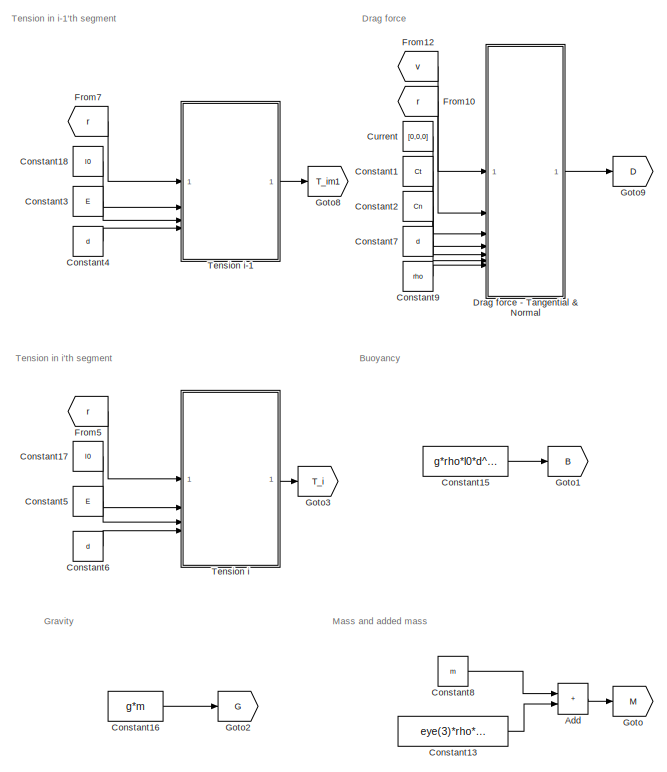
[diagram: root canvas - part 1/2, left side, full height]
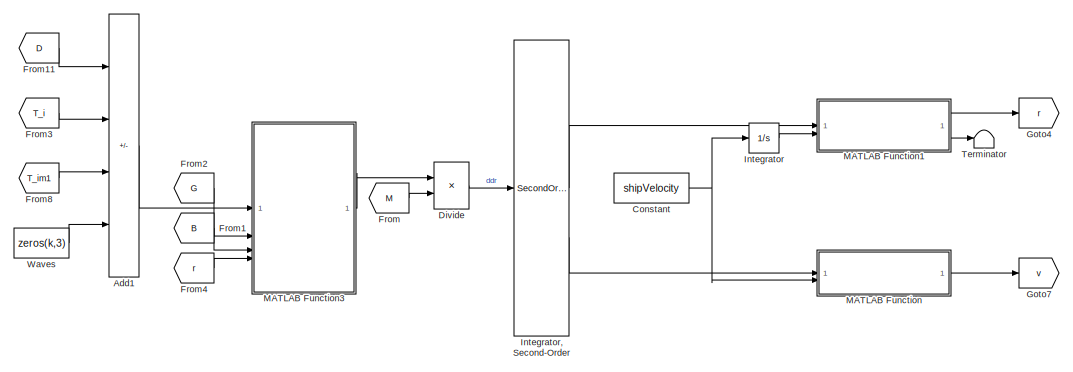
[diagram: root canvas - part 2/2, middle right region]
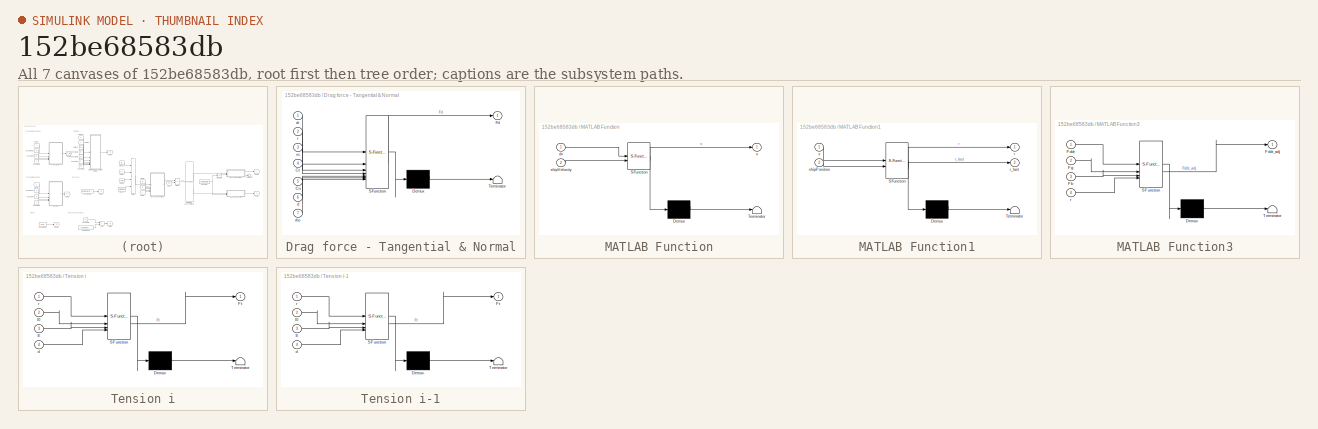
[diagram: thumbnail index - all 7 canvases of the model, root first then tree order]
MODEL slx_152be68583db
KIND model
CONFIG AbsTol = auto
CONFIG EnableMultiTasking = off
CONFIG FixedStep = 0.0001
CONFIG MaxStep = auto
CONFIG MinStep = 0.0001
CONFIG RelTol = 0.0001
CONFIG SampleTimeConstraint = Unconstrained
CONFIG SolverName = VariableStepAuto
CONFIG StartTime = 0.0
CONFIG StopTime = 300
BLOCK [Sum] Add
  IconShape = rectangular
BLOCK [Sum] Add1
  IconShape = rectangular
  Inputs = -+++
BLOCK [Constant] Constant
  Value = shipVelocity
  VectorParams1D = off
BLOCK [Constant] Constant1
  Value = Ct
BLOCK [Constant] Constant13
  Value = eye(3)*rho*pi*d^2/4*l0
BLOCK [Constant] Constant15
  Value = g*rho*l0*d^2/4
  VectorParams1D = off
BLOCK [Constant] Constant16
  Value = g*m
  VectorParams1D = off
BLOCK [Constant] Constant17
  Value = l0
BLOCK [Constant] Constant18
  Value = l0
BLOCK [Constant] Constant2
  Value = Cn
BLOCK [Constant] Constant3
  Value = E
BLOCK [Constant] Constant4
  Value = d
BLOCK [Constant] Constant5
  Value = E
BLOCK [Constant] Constant6
  Value = d
BLOCK [Constant] Constant7
  Value = d
BLOCK [Constant] Constant8
  Value = m
BLOCK [Constant] Constant9
  Value = rho
BLOCK [Constant] Current
  Value = [0,0,0]
  VectorParams1D = off
BLOCK [Product] Divide
  Inputs = */
  Multiplication = Matrix(*)
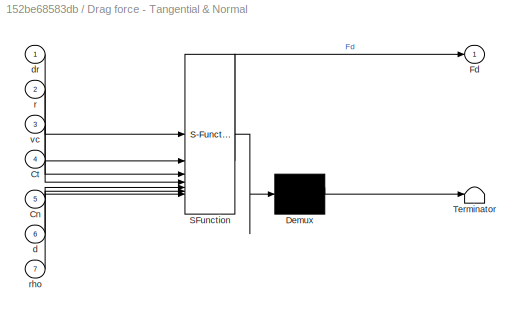
BLOCK [SubSystem] Drag force - Tangential & Normal
  ErrorFcn = Stateflow.Translate.translate
  PermitHierarchicalResolution = ExplicitOnly
  SFBlockType = MATLAB Function
  TreatAsAtomicUnit = on
BLOCK [Demux] Drag force - Tangential & Normal/ Demux 
  Outputs = 1
BLOCK [S-Function] Drag force - Tangential & Normal/ SFunction 
  EnableBusSupport = on
  FunctionName = sf_sfun
  PortCounts = [7 2]
  SFcnIsStateOwnerBlock = off
  SFunctionDeploymentMode = off
  Tag = Stateflow S-Function 26
BLOCK [Terminator] Drag force - Tangential & Normal/ Terminator 
BLOCK [Inport] Drag force - Tangential & Normal/Cn
  Port = 5
BLOCK [Inport] Drag force - Tangential & Normal/Ct
  Port = 4
BLOCK [Outport] Drag force - Tangential & Normal/Fd
BLOCK [Inport] Drag force - Tangential & Normal/d
  Port = 6
BLOCK [Inport] Drag force - Tangential & Normal/dr
BLOCK [Inport] Drag force - Tangential & Normal/r
  Port = 2
BLOCK [Inport] Drag force - Tangential & Normal/rho
  Port = 7
BLOCK [Inport] Drag force - Tangential & Normal/vc
  Port = 3
BLOCK [From] From
  GotoTag = M
BLOCK [From] From1
  GotoTag = B
BLOCK [From] From10
  GotoTag = r
BLOCK [From] From11
  GotoTag = D
BLOCK [From] From12
  GotoTag = v
BLOCK [From] From2
  GotoTag = G
BLOCK [From] From3
  GotoTag = T_i
BLOCK [From] From4
  GotoTag = r
BLOCK [From] From5
  GotoTag = r
BLOCK [From] From7
  GotoTag = r
BLOCK [From] From8
  GotoTag = T_im1
BLOCK [Goto] Goto
  GotoTag = M
BLOCK [Goto] Goto1
  GotoTag = B
BLOCK [Goto] Goto2
  GotoTag = G
BLOCK [Goto] Goto3
  GotoTag = T_i
BLOCK [Goto] Goto4
  GotoTag = r
BLOCK [Goto] Goto7
  GotoTag = v
BLOCK [Goto] Goto8
  GotoTag = T_im1
BLOCK [Goto] Goto9
  GotoTag = D
BLOCK [Integrator] Integrator
BLOCK [SecondOrderIntegrator] Integrator, Second-Order
  ICDXDT = v_ini_i
  ICX = r_ini_i
BLOCK [SubSystem] MATLAB Function
  ErrorFcn = Stateflow.Translate.translate
  LibrarySourceBlock = simulink/User-Defined\nFunctions/MATLAB Function
  PermitHierarchicalResolution = ExplicitOnly
  SFBlockType = MATLAB Function
  TreatAsAtomicUnit = on
BLOCK [Demux] MATLAB Function/ Demux 
  Outputs = 1
BLOCK [S-Function] MATLAB Function/ SFunction 
  EnableBusSupport = on
  FunctionName = sf_sfun
  PortCounts = [2 2]
  SFcnIsStateOwnerBlock = off
  SFunctionDeploymentMode = off
  Tag = Stateflow S-Function 2
BLOCK [Terminator] MATLAB Function/ Terminator 
BLOCK [Inport] MATLAB Function/dx
BLOCK [Inport] MATLAB Function/shipVelocity
  Port = 2
BLOCK [Outport] MATLAB Function/v
BLOCK [SubSystem] MATLAB Function1
  ErrorFcn = Stateflow.Translate.translate
  LibrarySourceBlock = simulink/User-Defined\nFunctions/MATLAB Function
  PermitHierarchicalResolution = ExplicitOnly
  SFBlockType = MATLAB Function
  TreatAsAtomicUnit = on
BLOCK [Demux] MATLAB Function1/ Demux 
  Outputs = 1
BLOCK [S-Function] MATLAB Function1/ SFunction 
  EnableBusSupport = on
  FunctionName = sf_sfun
  PortCounts = [2 3]
  SFcnIsStateOwnerBlock = off
  SFunctionDeploymentMode = off
  Tag = Stateflow S-Function 1
BLOCK [Terminator] MATLAB Function1/ Terminator 
BLOCK [Outport] MATLAB Function1/r
BLOCK [Outport] MATLAB Function1/r_last
  Port = 2
BLOCK [Inport] MATLAB Function1/shipPosition
  Port = 2
BLOCK [Inport] MATLAB Function1/x
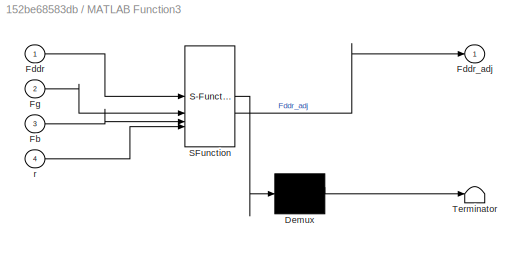
BLOCK [SubSystem] MATLAB Function3
  ErrorFcn = Stateflow.Translate.translate
  PermitHierarchicalResolution = ExplicitOnly
  SFBlockType = MATLAB Function
  TreatAsAtomicUnit = on
BLOCK [Demux] MATLAB Function3/ Demux 
  Outputs = 1
BLOCK [S-Function] MATLAB Function3/ SFunction 
  EnableBusSupport = on
  FunctionName = sf_sfun
  PortCounts = [4 2]
  SFcnIsStateOwnerBlock = off
  SFunctionDeploymentMode = off
  Tag = Stateflow S-Function 4
BLOCK [Terminator] MATLAB Function3/ Terminator 
BLOCK [Inport] MATLAB Function3/Fb
  Port = 3
BLOCK [Inport] MATLAB Function3/Fddr
BLOCK [Outport] MATLAB Function3/Fddr_adj
BLOCK [Inport] MATLAB Function3/Fg
  Port = 2
BLOCK [Inport] MATLAB Function3/r
  Port = 4
BLOCK [SubSystem] Tension i
  ErrorFcn = Stateflow.Translate.translate
  PermitHierarchicalResolution = ExplicitOnly
  SFBlockType = MATLAB Function
  TreatAsAtomicUnit = on
BLOCK [SubSystem] Tension i-1
  ErrorFcn = Stateflow.Translate.translate
  PermitHierarchicalResolution = ExplicitOnly
  SFBlockType = MATLAB Function
  TreatAsAtomicUnit = on
BLOCK [Demux] Tension i-1/ Demux 
  Outputs = 1
BLOCK [S-Function] Tension i-1/ SFunction 
  EnableBusSupport = on
  FunctionName = sf_sfun
  PortCounts = [4 2]
  SFcnIsStateOwnerBlock = off
  SFunctionDeploymentMode = off
  Tag = Stateflow S-Function 23
BLOCK [Terminator] Tension i-1/ Terminator 
BLOCK [Inport] Tension i-1/E
  Port = 3
BLOCK [Outport] Tension i-1/Ft
BLOCK [Inport] Tension i-1/d
  Port = 4
BLOCK [Inport] Tension i-1/l0
  Port = 2
BLOCK [Inport] Tension i-1/r
BLOCK [Demux] Tension i/ Demux 
  Outputs = 1
BLOCK [S-Function] Tension i/ SFunction 
  EnableBusSupport = on
  FunctionName = sf_sfun
  PortCounts = [4 2]
  SFcnIsStateOwnerBlock = off
  SFunctionDeploymentMode = off
  Tag = Stateflow S-Function 22
BLOCK [Terminator] Tension i/ Terminator 
BLOCK [Inport] Tension i/E
  Port = 3
BLOCK [Outport] Tension i/Ft
BLOCK [Inport] Tension i/d
  Port = 4
BLOCK [Inport] Tension i/l0
  Port = 2
BLOCK [Inport] Tension i/r
BLOCK [Terminator] Terminator
BLOCK [Constant] Waves
  Value = zeros(k,3)
ANNOTATION (root): Buoyancy
ANNOTATION (root): Drag force
ANNOTATION (root): Gravity
ANNOTATION (root): Mass and added mass
ANNOTATION (root): Tension in i'th segment
ANNOTATION (root): Tension in i-1'th segment
LINE Add1:1 -> MATLAB Function3:1
LINE Add:1 -> Goto:1
LINE Constant13:1 -> Add:2
LINE Constant15:1 -> Goto1:1
LINE Constant16:1 -> Goto2:1
LINE Constant17:1 -> Tension i:2
LINE Constant18:1 -> Tension i-1:2
LINE Constant1:1 -> Drag force - Tangential & Normal:4
LINE Constant2:1 -> Drag force - Tangential & Normal:5
LINE Constant3:1 -> Tension i-1:3
LINE Constant4:1 -> Tension i-1:4
LINE Constant5:1 -> Tension i:3
LINE Constant6:1 -> Tension i:4
LINE Constant7:1 -> Drag force - Tangential & Normal:6
LINE Constant8:1 -> Add:1
LINE Constant9:1 -> Drag force - Tangential & Normal:7
NET Constant:1 -> Integrator:1, MATLAB Function:2
LINE Current:1 -> Drag force - Tangential & Normal:3
LINE Divide:1 -> Integrator, Second-Order:1
LINE Drag force - Tangential & Normal:1 -> Goto9:1
LINE From10:1 -> Drag force - Tangential & Normal:2
LINE From11:1 -> Add1:1
LINE From12:1 -> Drag force - Tangential & Normal:1
LINE From1:1 -> MATLAB Function3:3
LINE From2:1 -> MATLAB Function3:2
LINE From3:1 -> Add1:2
LINE From4:1 -> MATLAB Function3:4
LINE From5:1 -> Tension i:1
LINE From7:1 -> Tension i-1:1
LINE From8:1 -> Add1:3
LINE From:1 -> Divide:2
LINE Integrator, Second-Order:1 -> MATLAB Function1:1
LINE Integrator, Second-Order:2 -> MATLAB Function:1
LINE Integrator:1 -> MATLAB Function1:2
LINE MATLAB Function1:1 -> Goto4:1
LINE MATLAB Function1:2 -> Terminator:1
LINE MATLAB Function3:1 -> Divide:1
LINE MATLAB Function:1 -> Goto7:1
LINE Tension i-1:1 -> Goto8:1
LINE Tension i:1 -> Goto3:1
LINE Waves:1 -> Add1:4
note: NET lines group one-source signal fan-out (src -> all destinations, sorted); 1:1 wires keep LINE
CHART MATLAB Function1 states=1 transitions=1
  STATE_LABEL 'eML_blk_kernel()'
  STATE_LABEL 'SCRIPT:\nfunction [r,r_last] = fcn(x,shipPosition)\nr = x;\nr(1,:) = r(1,:)+shipPosition;\nr_last = r(end,:);\n'
CHART MATLAB Function states=1 transitions=1
  STATE_LABEL 'eML_blk_kernel()'
  STATE_LABEL 'SCRIPT:\nfunction v = fcn(dx, shipVelocity)\nv = dx;\nv(1,:) = shipVelocity;\n'
CHART MATLAB Function3 states=1 transitions=1
  STATE_LABEL 'eML_blk_kernel()'
  STATE_LABEL 'SCRIPT:\nfunction Fddr_adj = fcn(Fddr,Fg,Fb,r)\nFddr_adj = zeros(length(Fddr),3);\nfor i=1:length(Fddr)\n    if i == 1\n        Fddr_adj(i,:) = [0,0,0];\n    elseif r(i,3) > 0\n        Fddr_adj(i,:) = Fddr(i,:) - Fg;\n    else\n        Fddr_adj(i,:) = Fddr(i,:) + Fb - Fg;\n    end\nend\n'
CHART Tension i states=1 transitions=1
  STATE_LABEL 'eML_blk_kernel()'
  STATE_LABEL 'SCRIPT:\nfunction Ft = tension(r,l0,E,d)\nFt = zeros(length(r),3);\n    for i=1:length(r)\n        if i == 1 || i == length(r)\n            Ft(i,:) = [0,0,0];\n        else\n            Ft(i,:) = pi*d^2/4*E*(norm(r(i+1,:)-r(i,:))-l0)/l0*(r(i+1,:)-r(i,:))/(norm(r(i+1,:)-r(i,:)));\n        end\n    end\nend'
CHART Tension i-1 states=1 transitions=1
  STATE_LABEL 'eML_blk_kernel()'
  STATE_LABEL 'SCRIPT:\nfunction Ft = tension(r,l0,E,d)\n    Ft = zeros(length(r),3);\n    for i=1:length(r)\n        if i == 1\n            Ft(i,:) = [0,0,0];\n        else\n            Ft(i,:) = pi*d^2/4*E*(norm(r(i-1,:)-r(i,:))-l0)/l0*(r(i-1,:)-r(i,:))/(norm(r(i-1,:)-r(i,:)));\n        end\n    end\nend'
CHART Drag force - Tangential & Normal states=1 transitions=1
  STATE_LABEL 'eML_blk_kernel()'
  STATE_LABEL 'SCRIPT:\nfunction Fd  = drag(dr,r,vc,Ct,Cn,d,rho)\n   Fd = zeros(length(r),3);\n   for i=1:length(r)\n        v = dr(i,:)-vc;\n        if i == 1\n            Fd(i,:) = [0,0,0];\n        else\n            if i == length(r)\n                t = (r(i,:)-r(i-1,:))/norm(r(i,:)-r(i-1,:));\n            else\n                t = (r(i+1,:)-r(i-1,:))/norm(r(i+1,:)-r(i-1,:));\n            end\n            % This is the t...<+638ch>'
CHART  states=0 transitions=0
CHART  states=0 transitions=0
CHART  states=0 transitions=0
CHART  states=0 transitions=0
CHART  states=0 transitions=0
CHART  states=0 transitions=0
